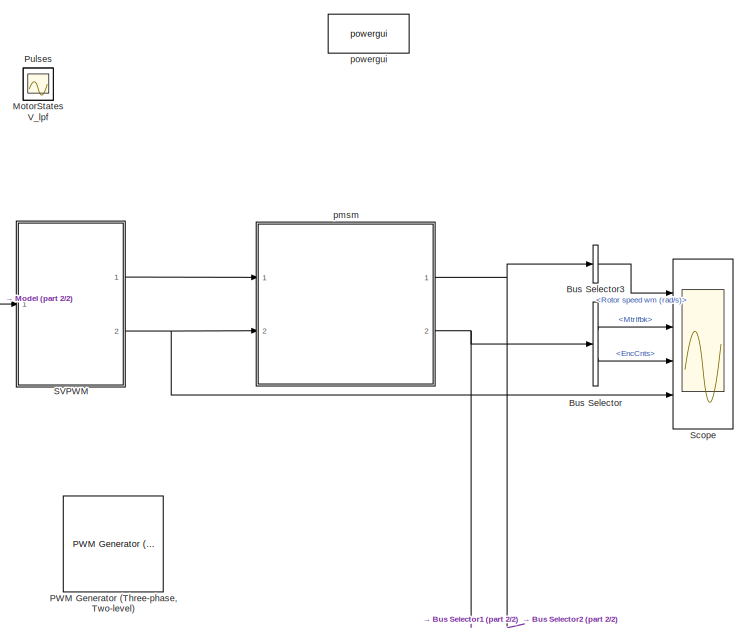
[diagram: root canvas - part 1/2, top right region]
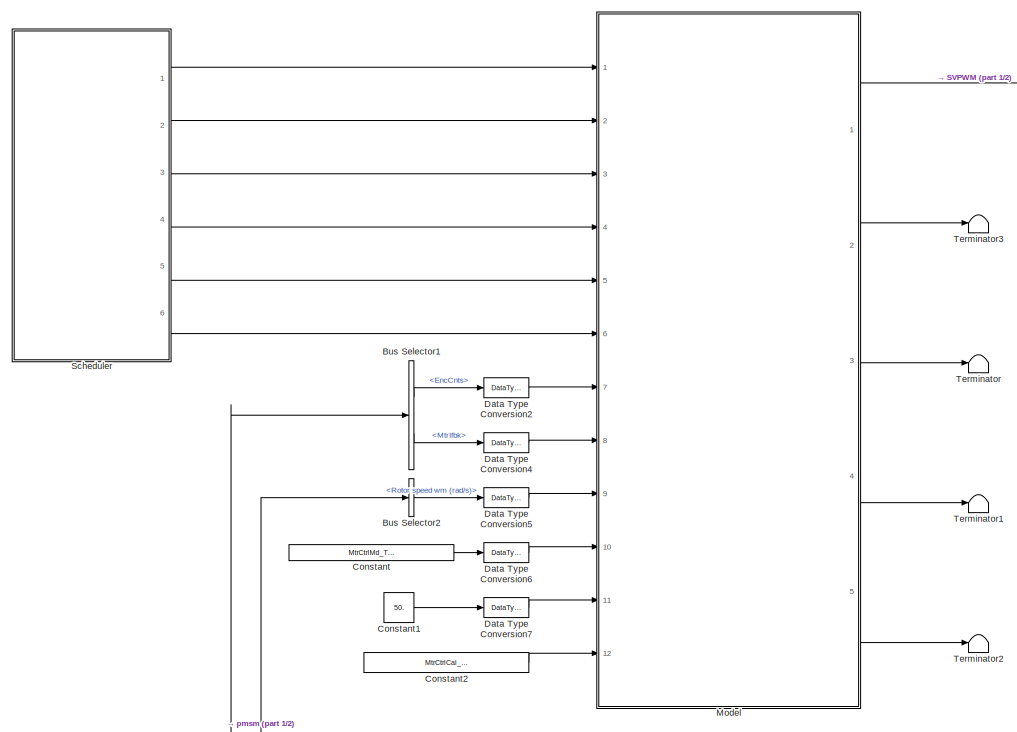
[diagram: root canvas - part 2/2, middle left region]
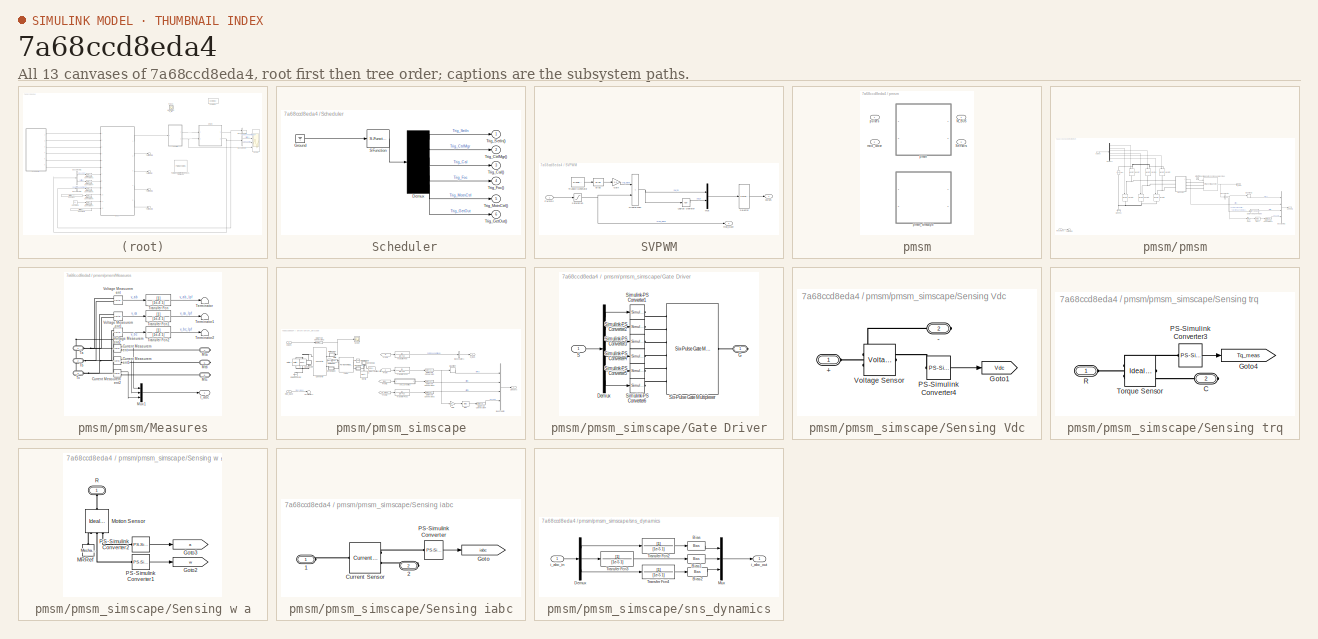
[diagram: thumbnail index - all 13 canvases of the model, root first then tree order]
MODEL slx_7a68ccd8eda4
KIND model
CONFIG AbsTol = auto
CONFIG EnableMultiTasking = off
CONFIG FixedStep = FastTsample / 10.
CONFIG MaxStep = auto
CONFIG MinStep = auto
CONFIG RelTol = 1e-3
CONFIG SampleTimeConstraint = Unconstrained
CONFIG Solver = ode15s
CONFIG SolverName = ode15s
CONFIG StartTime = 0.0
CONFIG StopTime = 0.2
BLOCK [SubSystem]  Scheduler
  ErrorFcn = Stateflow.Translate.translate
  PermitHierarchicalResolution = ExplicitOnly
  Ports = [0, 6]
  RequestExecContextInheritance = off
  SFBlockType = Chart
  SystemSampleTime = 1/30e3
  TreatAsAtomicUnit = on
BLOCK [Demux]  Scheduler/ Demux 
  Outputs = 6
  Ports = [1, 6]
BLOCK [Ground]  Scheduler/ Ground 
BLOCK [S-Function]  Scheduler/ SFunction 
  EnableBusSupport = on
  FunctionName = sf_sfun
  PortCounts = [1 1]
  Ports = [1, 1]
  SFcnIsStateOwnerBlock = off
  SFunctionDeploymentMode = off
  Tag = Stateflow S-Function pmsm_sim 3
BLOCK [Outport]  Scheduler/Trig_Cal()
  IconDisplay = Port number
  Port = 3
BLOCK [Outport]  Scheduler/Trig_CtrlMgr()
  IconDisplay = Port number
  Port = 2
BLOCK [Outport]  Scheduler/Trig_Foc()
  IconDisplay = Port number
  Port = 4
BLOCK [Outport]  Scheduler/Trig_GetOut()
  IconDisplay = Port number
  Port = 6
BLOCK [Outport]  Scheduler/Trig_MotnCtrl()
  IconDisplay = Port number
  Port = 5
BLOCK [Outport]  Scheduler/Trig_SetIn()
  IconDisplay = Port number
BLOCK [BusSelector] Bus Selector
  OutputAsBus = off
  OutputSignals = MtrIfbk,EncCnts
  Ports = [1, 2]
BLOCK [BusSelector] Bus Selector1
  OutputAsBus = off
  OutputSignals = EncCnts,MtrIfbk
  Ports = [1, 2]
BLOCK [BusSelector] Bus Selector2
  OutputAsBus = off
  OutputSignals = Rotor speed wm (rad/s)
  Ports = [1, 1]
BLOCK [BusSelector] Bus Selector3
  OutputAsBus = off
  OutputSignals = Rotor speed wm (rad/s)
  Ports = [1, 1]
BLOCK [Constant] Constant
  Value = MtrCtrlMd_T.CTRL_MD_CAL
BLOCK [Constant] Constant1
  Value = 50.
BLOCK [Constant] Constant2
  Value = MtrCtrlCal_T.CAL_IND_ID
BLOCK [DataTypeConversion] Data Type Conversion2
  OutDataTypeStr = int32
  RndMeth = Floor
  SaturateOnIntegerOverflow = off
BLOCK [DataTypeConversion] Data Type Conversion4
  OutDataTypeStr = single
  RndMeth = Floor
  SaturateOnIntegerOverflow = off
BLOCK [DataTypeConversion] Data Type Conversion5
  OutDataTypeStr = single
  RndMeth = Floor
  SaturateOnIntegerOverflow = off
BLOCK [DataTypeConversion] Data Type Conversion6
  RndMeth = Floor
  SaturateOnIntegerOverflow = off
BLOCK [DataTypeConversion] Data Type Conversion7
  OutDataTypeStr = single
  RndMeth = Floor
  SaturateOnIntegerOverflow = off
BLOCK [ModelReference] Model
  ModelNameDialog = pmsm_ctrl
  ModelReferenceVersion = 1.609
  Ports = [12, 5]
  ShowModelPeriodicEventPorts = on
BLOCK [Scope] MotorStates
  Floating = off
  IOType = viewer
  NumInputPorts = 1
  Ports = []
  ScopeSpecificationString = Simulink.scopes.TimeScopeBlockCfg('CurrentConfiguration', extmgr.ConfigurationSet(extmgr.Configuration('Core','General UI',true),extmgr.Configuration('Core','Source UI',true),extmgr.Configuration('Sources','WiredSimulink',true,'DataLoggingVariableName','ScopeData1'),extmgr.Configuration('Visuals','Time Domain',true,'SerializedDisplays',{struct('MinYLimReal','-0.0000000000000000000002','MaxYLimReal...<+4974ch>
BLOCK [Reference] PWM Generator (Three-phase, Two-level)  REF=pePwmGeneratorTwoLevel/PWM Generator
(Three-phase, Two-level)
  Commented = on
  Ports = [2, 2]
  SourceBlock = pePwmGeneratorTwoLevel/PWM Generator\n(Three-phase, Two-level)
  SourceType = PWM Generator (three-phase, two-level)
BLOCK [Scope] Pulses
  Floating = off
  IOType = viewer
  NumInputPorts = 1
  Ports = []
  ScopeSpecificationString = Simulink.scopes.TimeScopeBlockCfg('CurrentConfiguration', extmgr.ConfigurationSet(extmgr.Configuration('Core','General UI',true),extmgr.Configuration('Core','Source UI',true),extmgr.Configuration('Sources','WiredSimulink',true,'DataLoggingVariableName','ScopeData1'),extmgr.Configuration('Visuals','Time Domain',true,'SerializedDisplays',{struct('MinYLimReal','-0.125','MaxYLimReal','1.125','YLabelRe...<+3571ch>
BLOCK [SubSystem] SVPWM
  Ports = [1, 2]
  RequestExecContextInheritance = off
BLOCK [Bias] SVPWM/Bias
  Bias = 1
  SaturateOnIntegerOverflow = off
BLOCK [Gain] SVPWM/Gain
  Gain = 0.5
  OutDataTypeStr = Inherit: Inherit via internal rule
  ParamDataTypeStr = Inherit: Inherit via internal rule
  SaturateOnIntegerOverflow = off
BLOCK [RelationalOperator] SVPWM/GreaterThan
  InputSameDT = off
  Operator = <
  OutDataTypeStr = boolean
  Ports = [2, 1]
  RndMeth = Simplest
BLOCK [Logic] SVPWM/Logical Operator
  AllPortsSameDT = off
  Operator = NOT
  OutDataTypeStr = boolean
  Ports = [1, 1]
BLOCK [Mux] SVPWM/Mux
  DisplayOption = bar
  Inputs = 2
  Ports = [2, 1]
BLOCK [Inport] SVPWM/PwmDc
  IconDisplay = Port number
BLOCK [Saturate] SVPWM/Saturation
  InputPortMap = u0
  LowerLimit = 0
  Ports = [1, 1]
  UpperLimit = 1
BLOCK [Selector] SVPWM/Selector
  IndexOptions = Index vector (dialog)
  Indices = [1 4 2 5 3 6]
  InputPortWidth = 6
  OutputSizes = 1
  Ports = [1, 1]
BLOCK [Reference] SVPWM/Triangle Generator  REF=powerlib_meascontrol/Pulse & Signal
Generators/Triangle
Generator
  Ports = [0, 1]
  SourceBlock = powerlib_meascontrol/Pulse & Signal\nGenerators/Triangle\nGenerator
  SourceProductBaseCode = PS
  SourceProductName = Simscape Electrical
  SourceType = Triangle Generator
BLOCK [Outport] SVPWM/mod_wave
  IconDisplay = Port number
  Port = 2
  VectorParamsAs1DForOutWhenUnconnected = on
BLOCK [Outport] SVPWM/pulses
  IconDisplay = Port number
  VectorParamsAs1DForOutWhenUnconnected = on
BLOCK [Scope] Scope
  Floating = off
  NumInputPorts = 4
  Ports = [4]
  ScopeSpecificationString = Simulink.scopes.TimeScopeBlockCfg('CurrentConfiguration', extmgr.ConfigurationSet(extmgr.Configuration('Core','General UI',true),extmgr.Configuration('Core','Source UI',true),extmgr.Configuration('Sources','WiredSimulink',true,'DataLoggingVariableName','ScopeData1'),extmgr.Configuration('Visuals','Time Domain',true,'SerializedDisplays',{struct('MinYLimReal','-0.0000000000000000000002','MaxYLimReal...<+3733ch>
BLOCK [Terminator] Terminator
BLOCK [Terminator] Terminator1
BLOCK [Terminator] Terminator2
BLOCK [Terminator] Terminator3
BLOCK [Scope] V_lpf
  Floating = off
  IOType = viewer
  NumInputPorts = 1
  Ports = []
  ScopeSpecificationString = Simulink.scopes.TimeScopeBlockCfg('CurrentConfiguration', extmgr.ConfigurationSet(extmgr.Configuration('Core','General UI',true),extmgr.Configuration('Core','Source UI',true),extmgr.Configuration('Sources','WiredSimulink',true,'DataLoggingVariableName','ScopeData2'),extmgr.Configuration('Visuals','Time Domain',true,'SerializedDisplays',{struct('MinYLimReal','-57.77798','MaxYLimReal','57.80648','YL...<+1463ch>
BLOCK [SubSystem] pmsm
  OverrideUsingVariant = Variant1
  Ports = [2, 2]
  RequestExecContextInheritance = off
  Variant = on
  VariantControl = Variant1
BLOCK [Outport] pmsm/ M_BUS
  IconDisplay = Port number
BLOCK [Outport] pmsm/ Sensors
  IconDisplay = Port number
  Port = 2
BLOCK [Inport] pmsm/mod_wave 
  IconDisplay = Port number
  Port = 2
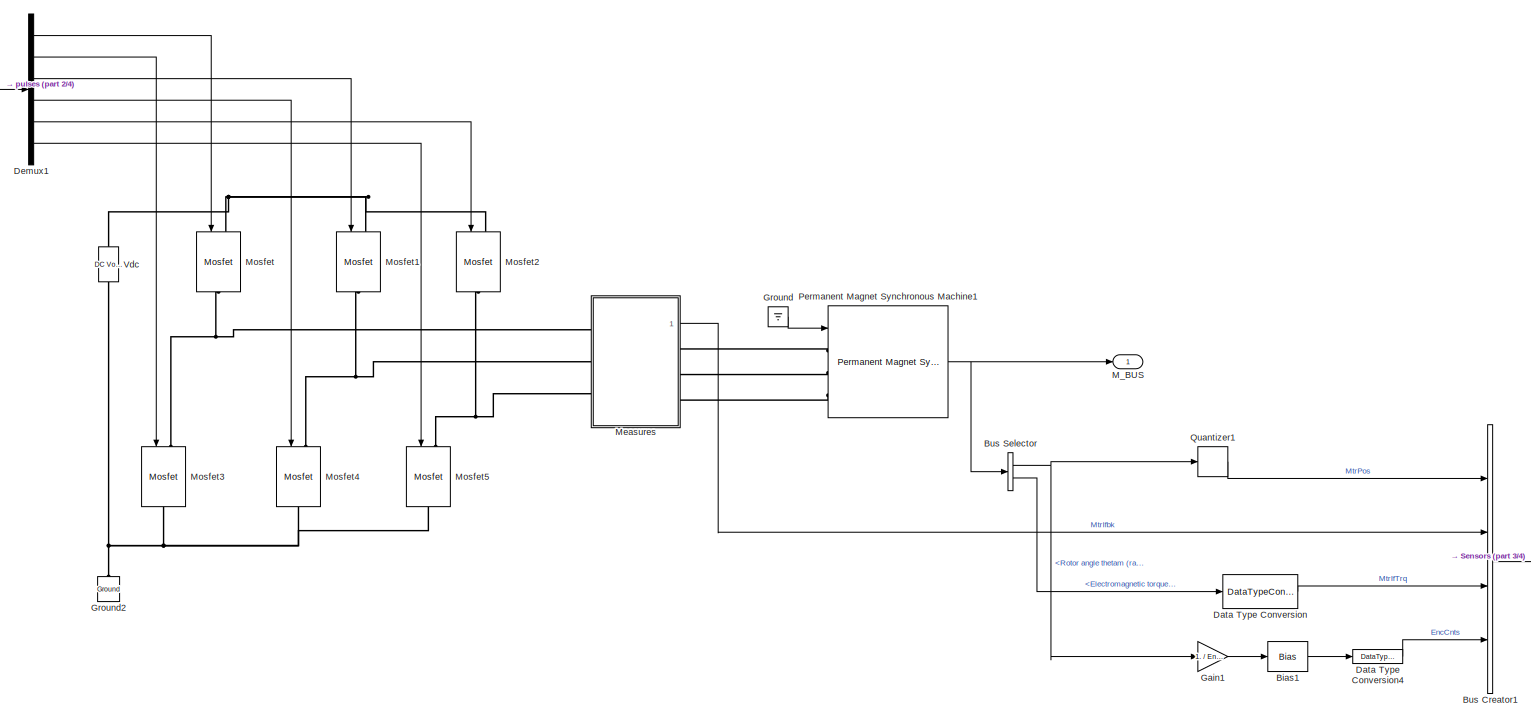
[diagram: pmsm/pmsm - part 1/4, most of the canvas]
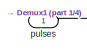
[diagram: pmsm/pmsm - part 2/4, top left region]
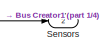
[diagram: pmsm/pmsm - part 3/4, bottom right region]
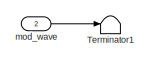
[diagram: pmsm/pmsm - part 4/4, bottom left region]
BLOCK [SubSystem] pmsm/pmsm
  Ports = [2, 2]
  RequestExecContextInheritance = off
  VariantControl = Variant2
BLOCK [Bias] pmsm/pmsm/Bias1
  Bias = 987
  SaturateOnIntegerOverflow = off
BLOCK [BusCreator] pmsm/pmsm/Bus Creator1
  DisplayOption = bar
  InheritFromInputs = on
  Inputs = 4
  Ports = [4, 1]
BLOCK [BusSelector] pmsm/pmsm/Bus Selector
  OutputAsBus = off
  OutputSignals = Rotor angle thetam (rad),Electromagnetic torque Te (N*m)
  Ports = [1, 2]
BLOCK [DataTypeConversion] pmsm/pmsm/Data Type Conversion
  RndMeth = Floor
  SaturateOnIntegerOverflow = off
BLOCK [DataTypeConversion] pmsm/pmsm/Data Type Conversion4
  OutDataTypeStr = int32
  RndMeth = Floor
  SaturateOnIntegerOverflow = off
BLOCK [Demux] pmsm/pmsm/Demux1
  DisplayOption = bar
  Outputs = 6
  Ports = [1, 6]
BLOCK [Gain] pmsm/pmsm/Gain1
  AttributesFormatString = %<Gain>
  Gain = 1. / EncCntsToRads
  OutDataTypeStr = Inherit: Inherit via back propagation
  ParamDataTypeStr = Inherit: Inherit via internal rule
  SaturateOnIntegerOverflow = off
BLOCK [Ground] pmsm/pmsm/Ground
BLOCK [Reference] pmsm/pmsm/Ground2  REF=powerlib/Elements/Ground
  Ports = [0, 0, 0, 0, 0, 1]
  SourceBlock = powerlib/Elements/Ground
  SourceProductBaseCode = PS
  SourceProductName = Simscape Electrical
  SourceType = Ground
BLOCK [Outport] pmsm/pmsm/M_BUS
  IconDisplay = Port number
BLOCK [SubSystem] pmsm/pmsm/Measures
  Ports = [0, 1, 0, 0, 0, 3, 3]
  RequestExecContextInheritance = off
BLOCK [Reference] pmsm/pmsm/Measures/Current Measurement  REF=powerlib/Measurements/Current Measurement
  AttributesFormatString = \n
  Ports = [0, 1, 0, 0, 0, 1, 1]
  SourceBlock = powerlib/Measurements/Current Measurement
  SourceProductBaseCode = PS
  SourceProductName = Simscape Electrical
  SourceType = Current Measurement
  Tag = PoWeRsYsTeMmEaSuReMeNt
BLOCK [Reference] pmsm/pmsm/Measures/Current Measurement1  REF=powerlib/Measurements/Current Measurement
  AttributesFormatString = \n
  Ports = [0, 1, 0, 0, 0, 1, 1]
  SourceBlock = powerlib/Measurements/Current Measurement
  SourceProductBaseCode = PS
  SourceProductName = Simscape Electrical
  SourceType = Current Measurement
  Tag = PoWeRsYsTeMmEaSuReMeNt
BLOCK [Reference] pmsm/pmsm/Measures/Current Measurement2  REF=powerlib/Measurements/Current Measurement
  AttributesFormatString = \n
  Ports = [0, 1, 0, 0, 0, 1, 1]
  SourceBlock = powerlib/Measurements/Current Measurement
  SourceProductBaseCode = PS
  SourceProductName = Simscape Electrical
  SourceType = Current Measurement
  Tag = PoWeRsYsTeMmEaSuReMeNt
BLOCK [Outport] pmsm/pmsm/Measures/I_abc
  IconDisplay = Port number
BLOCK [PMIOPort] pmsm/pmsm/Measures/Mta
  Port = 4
  Side = Right
BLOCK [PMIOPort] pmsm/pmsm/Measures/Mtb
  Port = 5
  Side = Right
BLOCK [PMIOPort] pmsm/pmsm/Measures/Mtc
  Port = 6
  Side = Right
BLOCK [Mux] pmsm/pmsm/Measures/Mux1
  DisplayOption = bar
  Inputs = 3
  Ports = [3, 1]
BLOCK [PMIOPort] pmsm/pmsm/Measures/Ta
  Side = Left
BLOCK [PMIOPort] pmsm/pmsm/Measures/Tb
  Port = 2
  Side = Left
BLOCK [PMIOPort] pmsm/pmsm/Measures/Tc
  Port = 3
  Side = Left
BLOCK [Terminator] pmsm/pmsm/Measures/Terminator
BLOCK [Terminator] pmsm/pmsm/Measures/Terminator1
BLOCK [Terminator] pmsm/pmsm/Measures/Terminator2
BLOCK [TransferFcn] pmsm/pmsm/Measures/Transfer Fcn
  Denominator = [1e-4 1]
BLOCK [TransferFcn] pmsm/pmsm/Measures/Transfer Fcn1
  Denominator = [1e-4 1]
BLOCK [TransferFcn] pmsm/pmsm/Measures/Transfer Fcn2
  Denominator = [1e-4 1]
BLOCK [Reference] pmsm/pmsm/Measures/Voltage Measurement  REF=powerlib/Measurements/Voltage Measurement
  Ports = [0, 1, 0, 0, 0, 2]
  SourceBlock = powerlib/Measurements/Voltage Measurement
  SourceProductBaseCode = PS
  SourceProductName = Simscape Electrical
  SourceType = Voltage Measurement
  UserDataPersistent = on
BLOCK [Reference] pmsm/pmsm/Measures/Voltage Measurement1  REF=powerlib/Measurements/Voltage Measurement
  Ports = [0, 1, 0, 0, 0, 2]
  SourceBlock = powerlib/Measurements/Voltage Measurement
  SourceProductBaseCode = PS
  SourceProductName = Simscape Electrical
  SourceType = Voltage Measurement
  UserDataPersistent = on
BLOCK [Reference] pmsm/pmsm/Measures/Voltage Measurement2  REF=powerlib/Measurements/Voltage Measurement
  Ports = [0, 1, 0, 0, 0, 2]
  SourceBlock = powerlib/Measurements/Voltage Measurement
  SourceProductBaseCode = PS
  SourceProductName = Simscape Electrical
  SourceType = Voltage Measurement
  UserDataPersistent = on
BLOCK [Reference] pmsm/pmsm/Mosfet  REF=powerlib/Power
Electronics/Mosfet
  Ports = [1, 0, 0, 0, 0, 1, 1]
  SourceBlock = powerlib/Power\nElectronics/Mosfet
  SourceProductBaseCode = PS
  SourceProductName = Simscape Power Systems
  SourceType = Mosfet
BLOCK [Reference] pmsm/pmsm/Mosfet1  REF=powerlib/Power
Electronics/Mosfet
  Ports = [1, 0, 0, 0, 0, 1, 1]
  SourceBlock = powerlib/Power\nElectronics/Mosfet
  SourceProductBaseCode = PS
  SourceProductName = Simscape Power Systems
  SourceType = Mosfet
BLOCK [Reference] pmsm/pmsm/Mosfet2  REF=powerlib/Power
Electronics/Mosfet
  Ports = [1, 0, 0, 0, 0, 1, 1]
  SourceBlock = powerlib/Power\nElectronics/Mosfet
  SourceProductBaseCode = PS
  SourceProductName = Simscape Power Systems
  SourceType = Mosfet
BLOCK [Reference] pmsm/pmsm/Mosfet3  REF=powerlib/Power
Electronics/Mosfet
  Ports = [1, 0, 0, 0, 0, 1, 1]
  SourceBlock = powerlib/Power\nElectronics/Mosfet
  SourceProductBaseCode = PS
  SourceProductName = Simscape Power Systems
  SourceType = Mosfet
BLOCK [Reference] pmsm/pmsm/Mosfet4  REF=powerlib/Power
Electronics/Mosfet
  Ports = [1, 0, 0, 0, 0, 1, 1]
  SourceBlock = powerlib/Power\nElectronics/Mosfet
  SourceProductBaseCode = PS
  SourceProductName = Simscape Power Systems
  SourceType = Mosfet
BLOCK [Reference] pmsm/pmsm/Mosfet5  REF=powerlib/Power
Electronics/Mosfet
  Ports = [1, 0, 0, 0, 0, 1, 1]
  SourceBlock = powerlib/Power\nElectronics/Mosfet
  SourceProductBaseCode = PS
  SourceProductName = Simscape Power Systems
  SourceType = Mosfet
BLOCK [Reference] pmsm/pmsm/Permanent Magnet Synchronous Machine1  REF=powerlib/Machines/Permanent Magnet
Synchronous Machine
  Ports = [1, 1, 0, 0, 0, 3]
  SourceBlock = powerlib/Machines/Permanent Magnet\nSynchronous Machine
  SourceProductBaseCode = PS
  SourceProductName = Simscape Electrical
  SourceType = Permanent Magnet Synchronous Machine
BLOCK [Quantizer] pmsm/pmsm/Quantizer1
  QuantizationInterval = 2 * pi / MtrParams.EncCnts
BLOCK [Outport] pmsm/pmsm/Sensors
  IconDisplay = Port number
  Port = 2
BLOCK [Terminator] pmsm/pmsm/Terminator1
BLOCK [Reference] pmsm/pmsm/Vdc  REF=powerlib/Electrical
Sources/DC Voltage Source
  Ports = [0, 0, 0, 0, 0, 1, 1]
  SourceBlock = powerlib/Electrical\nSources/DC Voltage Source
  SourceProductBaseCode = PS
  SourceProductName = Simscape Electrical
  SourceType = DC Voltage Source
BLOCK [Inport] pmsm/pmsm/mod_wave
  IconDisplay = Port number
  Port = 2
BLOCK [Inport] pmsm/pmsm/pulses
  IconDisplay = Port number
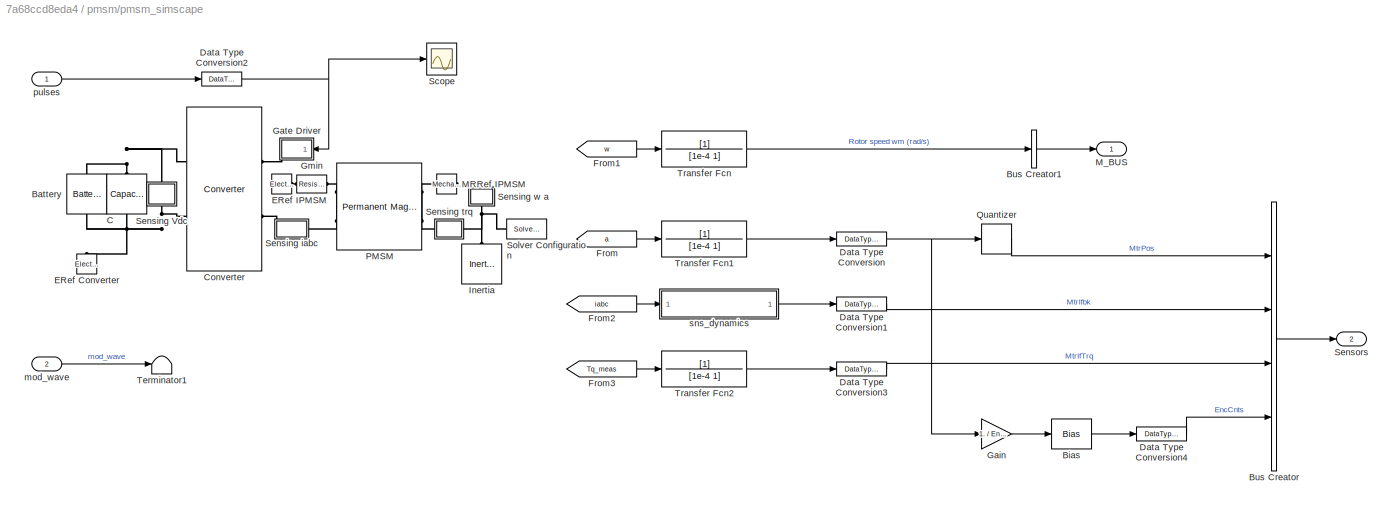
BLOCK [SubSystem] pmsm/pmsm_simscape
  Ports = [2, 2]
  RequestExecContextInheritance = off
  VariantControl = Variant1
BLOCK [Reference] pmsm/pmsm_simscape/Battery  REF=pe_lib/Sources/Battery
  Ports = [0, 0, 0, 0, 0, 1, 1]
  SourceBlock = pe_lib/Sources/Battery
  SourceProductBaseCode = PS
  SourceProductName = Simscape Power Systems
  SourceType = Battery
BLOCK [Bias] pmsm/pmsm_simscape/Bias
  Bias = 987
  SaturateOnIntegerOverflow = off
BLOCK [BusCreator] pmsm/pmsm_simscape/Bus Creator
  DisplayOption = bar
  InheritFromInputs = on
  Inputs = 4
  Ports = [4, 1]
BLOCK [BusCreator] pmsm/pmsm_simscape/Bus Creator1
  DisplayOption = bar
  InheritFromInputs = on
  Inputs = 1
  Ports = [1, 1]
BLOCK [Reference] pmsm/pmsm_simscape/C  REF=fl_lib/Electrical/Electrical Elements/Capacitor
  Ports = [0, 0, 0, 0, 0, 1, 1]
  SourceBlock = fl_lib/Electrical/Electrical Elements/Capacitor
  SourceProductName = Foundation Library
  SourceType = Capacitor
BLOCK [Reference] pmsm/pmsm_simscape/Converter  REF=pe_lib/Semiconductors/Converter
  Ports = [0, 0, 0, 0, 0, 2, 2]
  SourceBlock = pe_lib/Semiconductors/Converter
  SourceProductBaseCode = PS
  SourceProductName = Simscape Power Systems
  SourceType = Converter
BLOCK [DataTypeConversion] pmsm/pmsm_simscape/Data Type Conversion
  RndMeth = Floor
  SaturateOnIntegerOverflow = off
BLOCK [DataTypeConversion] pmsm/pmsm_simscape/Data Type Conversion1
  RndMeth = Floor
  SaturateOnIntegerOverflow = off
BLOCK [DataTypeConversion] pmsm/pmsm_simscape/Data Type Conversion2
  RndMeth = Floor
  SaturateOnIntegerOverflow = off
BLOCK [DataTypeConversion] pmsm/pmsm_simscape/Data Type Conversion3
  RndMeth = Floor
  SaturateOnIntegerOverflow = off
BLOCK [DataTypeConversion] pmsm/pmsm_simscape/Data Type Conversion4
  OutDataTypeStr = int32
  RndMeth = Floor
  SaturateOnIntegerOverflow = off
BLOCK [Reference] pmsm/pmsm_simscape/ERef Converter  REF=fl_lib/Electrical/Electrical Elements/Electrical Reference
  Ports = [0, 0, 0, 0, 0, 1]
  SourceBlock = fl_lib/Electrical/Electrical Elements/Electrical Reference
  SourceProductName = Foundation Library
  SourceType = Electrical Reference
BLOCK [Reference] pmsm/pmsm_simscape/ERef IPMSM  REF=fl_lib/Electrical/Electrical Elements/Electrical Reference
  Ports = [0, 0, 0, 0, 0, 1]
  SourceBlock = fl_lib/Electrical/Electrical Elements/Electrical Reference
  SourceProductName = Foundation Library
  SourceType = Electrical Reference
BLOCK [From] pmsm/pmsm_simscape/From
  GotoTag = a
  TagVisibility = global
BLOCK [From] pmsm/pmsm_simscape/From1
  GotoTag = w
  TagVisibility = global
BLOCK [From] pmsm/pmsm_simscape/From2
  GotoTag = iabc
  TagVisibility = global
BLOCK [From] pmsm/pmsm_simscape/From3
  GotoTag = Tq_meas
  TagVisibility = global
BLOCK [Gain] pmsm/pmsm_simscape/Gain
  AttributesFormatString = %<Gain>
  Gain = 1. / EncCntsToRads
  OutDataTypeStr = Inherit: Inherit via back propagation
  ParamDataTypeStr = Inherit: Inherit via internal rule
  SaturateOnIntegerOverflow = off
BLOCK [SubSystem] pmsm/pmsm_simscape/Gate Driver
  Ports = [1, 0, 0, 0, 0, 0, 1]
  RequestExecContextInheritance = off
BLOCK [Demux] pmsm/pmsm_simscape/Gate Driver/Demux
  DisplayOption = bar
  Outputs = 6
  Ports = [1, 6]
BLOCK [PMIOPort] pmsm/pmsm_simscape/Gate Driver/G
  Side = Right
BLOCK [Inport] pmsm/pmsm_simscape/Gate Driver/S
  IconDisplay = Port number
BLOCK [Reference] pmsm/pmsm_simscape/Gate Driver/Simulink-PS Converter1  REF=nesl_utility/Simulink-PS
Converter
  Ports = [1, 0, 0, 0, 0, 0, 1]
  SourceBlock = nesl_utility/Simulink-PS\nConverter
  SourceProductBaseCode = SS
  SourceProductName = Simscape
  SourceType = Simulink-PS\nConverter
BLOCK [Reference] pmsm/pmsm_simscape/Gate Driver/Simulink-PS Converter2  REF=nesl_utility/Simulink-PS
Converter
  Ports = [1, 0, 0, 0, 0, 0, 1]
  SourceBlock = nesl_utility/Simulink-PS\nConverter
  SourceProductBaseCode = SS
  SourceProductName = Simscape
  SourceType = Simulink-PS\nConverter
BLOCK [Reference] pmsm/pmsm_simscape/Gate Driver/Simulink-PS Converter3  REF=nesl_utility/Simulink-PS
Converter
  Ports = [1, 0, 0, 0, 0, 0, 1]
  SourceBlock = nesl_utility/Simulink-PS\nConverter
  SourceProductBaseCode = SS
  SourceProductName = Simscape
  SourceType = Simulink-PS\nConverter
BLOCK [Reference] pmsm/pmsm_simscape/Gate Driver/Simulink-PS Converter4  REF=nesl_utility/Simulink-PS
Converter
  Ports = [1, 0, 0, 0, 0, 0, 1]
  SourceBlock = nesl_utility/Simulink-PS\nConverter
  SourceProductBaseCode = SS
  SourceProductName = Simscape
  SourceType = Simulink-PS\nConverter
BLOCK [Reference] pmsm/pmsm_simscape/Gate Driver/Simulink-PS Converter5  REF=nesl_utility/Simulink-PS
Converter
  Ports = [1, 0, 0, 0, 0, 0, 1]
  SourceBlock = nesl_utility/Simulink-PS\nConverter
  SourceProductBaseCode = SS
  SourceProductName = Simscape
  SourceType = Simulink-PS\nConverter
BLOCK [Reference] pmsm/pmsm_simscape/Gate Driver/Simulink-PS Converter6  REF=nesl_utility/Simulink-PS
Converter
  Ports = [1, 0, 0, 0, 0, 0, 1]
  SourceBlock = nesl_utility/Simulink-PS\nConverter
  SourceProductBaseCode = SS
  SourceProductName = Simscape
  SourceType = Simulink-PS\nConverter
BLOCK [Reference] pmsm/pmsm_simscape/Gate Driver/Six-Pulse Gate Multiplexer  REF=pe_lib/Semiconductors/Six-Pulse Gate
Multiplexer
  Ports = [0, 0, 0, 0, 0, 6, 1]
  SourceBlock = pe_lib/Semiconductors/Six-Pulse Gate\nMultiplexer
  SourceProductBaseCode = PS
  SourceProductName = Simscape Power Systems
  SourceType = Six-Pulse Gate\nMultiplexer
BLOCK [Reference] pmsm/pmsm_simscape/Gmin  REF=fl_lib/Electrical/Electrical Elements/Resistor
  Ports = [0, 0, 0, 0, 0, 1, 1]
  SourceBlock = fl_lib/Electrical/Electrical Elements/Resistor
  SourceProductName = Foundation Library
  SourceType = Resistor
BLOCK [Reference] pmsm/pmsm_simscape/Inertia  REF=fl_lib/Mechanical/Rotational Elements/Inertia
  Commented = on
  Ports = [0, 0, 0, 0, 0, 1]
  SourceBlock = fl_lib/Mechanical/Rotational Elements/Inertia
  SourceProductName = Foundation Library
  SourceType = Inertia
BLOCK [Reference] pmsm/pmsm_simscape/MRRef IPMSM  REF=fl_lib/Mechanical/Rotational Elements/Mechanical
Rotational Reference
  Ports = [0, 0, 0, 0, 0, 1]
  SourceBlock = fl_lib/Mechanical/Rotational Elements/Mechanical\nRotational Reference
  SourceProductName = Foundation Library
  SourceType = Mechanical\nRotational Reference
BLOCK [Outport] pmsm/pmsm_simscape/M_BUS
  IconDisplay = Port number
BLOCK [Reference] pmsm/pmsm_simscape/PMSM  REF=pe_lib/Machines/Permanent Magnet
Rotor/Permanent Magnet
Synchronous Motor
  Ports = [0, 0, 0, 0, 0, 2, 2]
  SourceBlock = pe_lib/Machines/Permanent Magnet\nRotor/Permanent Magnet\nSynchronous Motor
  SourceProductBaseCode = PS
  SourceProductName = Simscape Power Systems
  SourceType = Permanent Magnet\nSynchronous Motor
BLOCK [Quantizer] pmsm/pmsm_simscape/Quantizer
  QuantizationInterval = 2 * pi / MtrParams.EncCnts
BLOCK [Scope] pmsm/pmsm_simscape/Scope
  Floating = off
  NumInputPorts = 1
  Ports = [1]
  ScopeSpecificationString = Simulink.scopes.TimeScopeBlockCfg('CurrentConfiguration', extmgr.ConfigurationSet(extmgr.Configuration('Core','General UI',true),extmgr.Configuration('Core','Source UI',true),extmgr.Configuration('Sources','WiredSimulink',true,'DataLoggingVariableName','ScopeData1'),extmgr.Configuration('Visuals','Time Domain',true,'SerializedDisplays',{struct('MinYLimReal','-0.125','MaxYLimReal','1.125','YLabelRe...<+1571ch>
BLOCK [SubSystem] pmsm/pmsm_simscape/Sensing Vdc
  Ports = [0, 0, 0, 0, 0, 1, 1]
  RequestExecContextInheritance = off
BLOCK [PMIOPort] pmsm/pmsm_simscape/Sensing Vdc/+
  Side = Left
BLOCK [PMIOPort] pmsm/pmsm_simscape/Sensing Vdc/-
  Port = 2
  Side = Right
BLOCK [Goto] pmsm/pmsm_simscape/Sensing Vdc/Goto1
  GotoTag = Vdc
  TagVisibility = global
BLOCK [Reference] pmsm/pmsm_simscape/Sensing Vdc/PS-Simulink Converter4  REF=nesl_utility/PS-Simulink
Converter
  Ports = [0, 1, 0, 0, 0, 1]
  SourceBlock = nesl_utility/PS-Simulink\nConverter
  SourceProductBaseCode = SS
  SourceProductName = Simscape
  SourceType = PS-Simulink\nConverter
BLOCK [Reference] pmsm/pmsm_simscape/Sensing Vdc/Voltage Sensor  REF=fl_lib/Electrical/Electrical Sensors/Voltage Sensor
  Ports = [0, 0, 0, 0, 0, 1, 2]
  SourceBlock = fl_lib/Electrical/Electrical Sensors/Voltage Sensor
  SourceProductName = Foundation Library
  SourceType = Voltage Sensor
BLOCK [SubSystem] pmsm/pmsm_simscape/Sensing iabc
  Ports = [0, 0, 0, 0, 0, 1, 1]
  RequestExecContextInheritance = off
BLOCK [PMIOPort] pmsm/pmsm_simscape/Sensing iabc/1
  Side = Left
BLOCK [PMIOPort] pmsm/pmsm_simscape/Sensing iabc/2
  Port = 2
  Side = Right
BLOCK [Reference] pmsm/pmsm_simscape/Sensing iabc/Current Sensor  REF=pe_lib/Sensors/Current Sensor
  Ports = [0, 0, 0, 0, 0, 1, 2]
  SourceBlock = pe_lib/Sensors/Current Sensor
  SourceProductBaseCode = PS
  SourceProductName = Simscape Power Systems
  SourceType = Current Sensor
BLOCK [Goto] pmsm/pmsm_simscape/Sensing iabc/Goto
  GotoTag = iabc
  TagVisibility = global
BLOCK [Reference] pmsm/pmsm_simscape/Sensing iabc/PS-Simulink Converter  REF=nesl_utility/PS-Simulink
Converter
  Ports = [0, 1, 0, 0, 0, 1]
  SourceBlock = nesl_utility/PS-Simulink\nConverter
  SourceProductBaseCode = SS
  SourceProductName = Simscape
  SourceType = PS-Simulink\nConverter
BLOCK [SubSystem] pmsm/pmsm_simscape/Sensing trq
  Ports = [0, 0, 0, 0, 0, 1, 1]
  RequestExecContextInheritance = off
BLOCK [PMIOPort] pmsm/pmsm_simscape/Sensing trq/C
  Port = 2
  Side = Right
BLOCK [Goto] pmsm/pmsm_simscape/Sensing trq/Goto4
  GotoTag = Tq_meas
  TagVisibility = global
BLOCK [Reference] pmsm/pmsm_simscape/Sensing trq/PS-Simulink Converter3  REF=nesl_utility/PS-Simulink
Converter
  Ports = [0, 1, 0, 0, 0, 1]
  SourceBlock = nesl_utility/PS-Simulink\nConverter
  SourceProductBaseCode = SS
  SourceProductName = Simscape
  SourceType = PS-Simulink\nConverter
BLOCK [PMIOPort] pmsm/pmsm_simscape/Sensing trq/R
  Side = Left
BLOCK [Reference] pmsm/pmsm_simscape/Sensing trq/Torque Sensor  REF=fl_lib/Mechanical/Mechanical Sensors/Ideal Torque Sensor
  Ports = [0, 0, 0, 0, 0, 1, 2]
  SourceBlock = fl_lib/Mechanical/Mechanical Sensors/Ideal Torque Sensor
  SourceProductName = Foundation Library
  SourceType = Ideal Torque Sensor
BLOCK [SubSystem] pmsm/pmsm_simscape/Sensing w a
  Ports = [0, 0, 0, 0, 0, 1]
  RequestExecContextInheritance = off
BLOCK [Goto] pmsm/pmsm_simscape/Sensing w a/Goto2
  GotoTag = w
  TagVisibility = global
BLOCK [Goto] pmsm/pmsm_simscape/Sensing w a/Goto3
  GotoTag = a
  TagVisibility = global
BLOCK [Reference] pmsm/pmsm_simscape/Sensing w a/MRRef  REF=fl_lib/Mechanical/Rotational Elements/Mechanical
Rotational Reference
  Ports = [0, 0, 0, 0, 0, 1]
  SourceBlock = fl_lib/Mechanical/Rotational Elements/Mechanical\nRotational Reference
  SourceProductName = Foundation Library
  SourceType = Mechanical\nRotational Reference
BLOCK [Reference] pmsm/pmsm_simscape/Sensing w a/Motion Sensor  REF=fl_lib/Mechanical/Mechanical Sensors/Ideal Rotational
Motion Sensor
  Ports = [0, 0, 0, 0, 0, 1, 3]
  SourceBlock = fl_lib/Mechanical/Mechanical Sensors/Ideal Rotational\nMotion Sensor
  SourceProductName = Foundation Library
  SourceType = Ideal Rotational\nMotion Sensor
BLOCK [Reference] pmsm/pmsm_simscape/Sensing w a/PS-Simulink Converter1  REF=nesl_utility/PS-Simulink
Converter
  Ports = [0, 1, 0, 0, 0, 1]
  SourceBlock = nesl_utility/PS-Simulink\nConverter
  SourceProductBaseCode = SS
  SourceProductName = Simscape
  SourceType = PS-Simulink\nConverter
BLOCK [Reference] pmsm/pmsm_simscape/Sensing w a/PS-Simulink Converter2  REF=nesl_utility/PS-Simulink
Converter
  Ports = [0, 1, 0, 0, 0, 1]
  SourceBlock = nesl_utility/PS-Simulink\nConverter
  SourceProductBaseCode = SS
  SourceProductName = Simscape
  SourceType = PS-Simulink\nConverter
BLOCK [PMIOPort] pmsm/pmsm_simscape/Sensing w a/R
  Side = Left
BLOCK [Outport] pmsm/pmsm_simscape/Sensors
  IconDisplay = Port number
  Port = 2
BLOCK [Reference] pmsm/pmsm_simscape/Solver Configuration  REF=nesl_utility/Solver
Configuration
  Ports = [0, 0, 0, 0, 0, 0, 1]
  SourceBlock = nesl_utility/Solver\nConfiguration
  SourceProductBaseCode = SS
  SourceProductName = Simscape
  SourceType = Solver\nConfiguration
BLOCK [Terminator] pmsm/pmsm_simscape/Terminator1
BLOCK [TransferFcn] pmsm/pmsm_simscape/Transfer Fcn
  Denominator = [1e-4 1]
BLOCK [TransferFcn] pmsm/pmsm_simscape/Transfer Fcn1
  Denominator = [1e-4 1]
BLOCK [TransferFcn] pmsm/pmsm_simscape/Transfer Fcn2
  Denominator = [1e-4 1]
BLOCK [Inport] pmsm/pmsm_simscape/mod_wave
  IconDisplay = Port number
  Port = 2
BLOCK [Inport] pmsm/pmsm_simscape/pulses
  IconDisplay = Port number
BLOCK [SubSystem] pmsm/pmsm_simscape/sns_dynamics
  Ports = [1, 1]
  RequestExecContextInheritance = off
BLOCK [Bias] pmsm/pmsm_simscape/sns_dynamics/Bias
  Bias = 98.50
  SaturateOnIntegerOverflow = off
BLOCK [Bias] pmsm/pmsm_simscape/sns_dynamics/Bias1
  Bias = -10.5
  SaturateOnIntegerOverflow = off
BLOCK [Bias] pmsm/pmsm_simscape/sns_dynamics/Bias2
  Bias = 20.9
  SaturateOnIntegerOverflow = off
BLOCK [Demux] pmsm/pmsm_simscape/sns_dynamics/Demux
  DisplayOption = bar
  Outputs = 3
  Ports = [1, 3]
BLOCK [Mux] pmsm/pmsm_simscape/sns_dynamics/Mux
  DisplayOption = bar
  Inputs = 3
  Ports = [3, 1]
BLOCK [TransferFcn] pmsm/pmsm_simscape/sns_dynamics/Transfer Fcn2
  Denominator = [1e-5 1]
BLOCK [TransferFcn] pmsm/pmsm_simscape/sns_dynamics/Transfer Fcn3
  Denominator = [1e-5 1]
BLOCK [TransferFcn] pmsm/pmsm_simscape/sns_dynamics/Transfer Fcn4
  Denominator = [1e-5 1]
BLOCK [Inport] pmsm/pmsm_simscape/sns_dynamics/i_abc_in
  IconDisplay = Port number
BLOCK [Outport] pmsm/pmsm_simscape/sns_dynamics/i_abc_out
  IconDisplay = Port number
BLOCK [Inport] pmsm/pulses 
  IconDisplay = Port number
BLOCK [Reference] powergui  REF=powerlib/powergui
  Ports = []
  Priority = 1
  SourceBlock = powerlib/powergui
  SourceProductBaseCode = PS
  SourceProductName = Simscape Power Systems
  SourceType = PSB option menu block
LINE  Scheduler:1 -> Model:1
LINE  Scheduler:2 -> Model:2
LINE  Scheduler:3 -> Model:3
LINE  Scheduler:4 -> Model:4
LINE  Scheduler:5 -> Model:5
LINE  Scheduler:6 -> Model:6
LINE Bus Selector1:1 -> Data Type Conversion2:1
LINE Bus Selector1:2 -> Data Type Conversion4:1
LINE Bus Selector2:1 -> Data Type Conversion5:1
LINE Bus Selector3:1 -> Scope:1
LINE Bus Selector:1 -> Scope:2
LINE Bus Selector:2 -> Scope:3
LINE Constant1:1 -> Data Type Conversion7:1
LINE Constant2:1 -> Model:12
LINE Constant:1 -> Data Type Conversion6:1
LINE Data Type Conversion2:1 -> Model:7
LINE Data Type Conversion4:1 -> Model:8
LINE Data Type Conversion5:1 -> Model:9
LINE Data Type Conversion6:1 -> Model:10
LINE Data Type Conversion7:1 -> Model:11
LINE Model:1 -> SVPWM:1
LINE Model:2 -> Terminator3:1
LINE Model:3 -> Terminator:1
LINE Model:4 -> Terminator1:1
LINE Model:5 -> Terminator2:1
LINE SVPWM/Bias:1 -> SVPWM/Gain:1
LINE SVPWM/Gain:1 -> SVPWM/GreaterThan:1
NET SVPWM/GreaterThan:1 -> SVPWM/Logical Operator:1, SVPWM/Mux:1
LINE SVPWM/Logical Operator:1 -> SVPWM/Mux:2
LINE SVPWM/Mux:1 -> SVPWM/Selector:1
LINE SVPWM/PwmDc:1 -> SVPWM/Saturation:1
NET SVPWM/Saturation:1 -> SVPWM/GreaterThan:2, SVPWM/mod_wave:1
LINE SVPWM/Selector:1 -> SVPWM/pulses:1
LINE SVPWM/Triangle Generator:1 -> SVPWM/Bias:1
LINE SVPWM:1 -> pmsm:1
NET SVPWM:2 -> Scope:4, pmsm:2
LINE pmsm/pmsm/Bias1:1 -> pmsm/pmsm/Data Type Conversion4:1
LINE pmsm/pmsm/Bus Creator1:1 -> pmsm/pmsm/Sensors:1
NET pmsm/pmsm/Bus Selector:1 -> pmsm/pmsm/Gain1:1, pmsm/pmsm/Quantizer1:1
LINE pmsm/pmsm/Bus Selector:2 -> pmsm/pmsm/Data Type Conversion:1
LINE pmsm/pmsm/Data Type Conversion4:1 -> pmsm/pmsm/Bus Creator1:4
LINE pmsm/pmsm/Data Type Conversion:1 -> pmsm/pmsm/Bus Creator1:3
LINE pmsm/pmsm/Demux1:1 -> pmsm/pmsm/Mosfet:1
LINE pmsm/pmsm/Demux1:2 -> pmsm/pmsm/Mosfet3:1
LINE pmsm/pmsm/Demux1:3 -> pmsm/pmsm/Mosfet1:1
LINE pmsm/pmsm/Demux1:4 -> pmsm/pmsm/Mosfet4:1
LINE pmsm/pmsm/Demux1:5 -> pmsm/pmsm/Mosfet2:1
LINE pmsm/pmsm/Demux1:6 -> pmsm/pmsm/Mosfet5:1
LINE pmsm/pmsm/Gain1:1 -> pmsm/pmsm/Bias1:1
LINE pmsm/pmsm/Ground:1 -> pmsm/pmsm/Permanent Magnet Synchronous Machine1:1
LINE pmsm/pmsm/Measures/Current Measurement1:1 -> pmsm/pmsm/Measures/Mux1:2
LINE pmsm/pmsm/Measures/Current Measurement2:1 -> pmsm/pmsm/Measures/Mux1:3
LINE pmsm/pmsm/Measures/Current Measurement:1 -> pmsm/pmsm/Measures/Mux1:1
LINE pmsm/pmsm/Measures/Mux1:1 -> pmsm/pmsm/Measures/I_abc:1
LINE pmsm/pmsm/Measures/Transfer Fcn1:1 -> pmsm/pmsm/Measures/Terminator1:1
LINE pmsm/pmsm/Measures/Transfer Fcn2:1 -> pmsm/pmsm/Measures/Terminator2:1
LINE pmsm/pmsm/Measures/Transfer Fcn:1 -> pmsm/pmsm/Measures/Terminator:1
LINE pmsm/pmsm/Measures/Voltage Measurement1:1 -> pmsm/pmsm/Measures/Transfer Fcn1:1
LINE pmsm/pmsm/Measures/Voltage Measurement2:1 -> pmsm/pmsm/Measures/Transfer Fcn2:1
LINE pmsm/pmsm/Measures/Voltage Measurement:1 -> pmsm/pmsm/Measures/Transfer Fcn:1
LINE pmsm/pmsm/Measures:1 -> pmsm/pmsm/Bus Creator1:2
NET pmsm/pmsm/Permanent Magnet Synchronous Machine1:1 -> pmsm/pmsm/Bus Selector:1, pmsm/pmsm/M_BUS:1
LINE pmsm/pmsm/Quantizer1:1 -> pmsm/pmsm/Bus Creator1:1
LINE pmsm/pmsm/mod_wave:1 -> pmsm/pmsm/Terminator1:1
LINE pmsm/pmsm/pulses:1 -> pmsm/pmsm/Demux1:1
LINE pmsm/pmsm_simscape/Bias:1 -> pmsm/pmsm_simscape/Data Type Conversion4:1
LINE pmsm/pmsm_simscape/Bus Creator1:1 -> pmsm/pmsm_simscape/M_BUS:1
LINE pmsm/pmsm_simscape/Bus Creator:1 -> pmsm/pmsm_simscape/Sensors:1
LINE pmsm/pmsm_simscape/Data Type Conversion1:1 -> pmsm/pmsm_simscape/Bus Creator:2
NET pmsm/pmsm_simscape/Data Type Conversion2:1 -> pmsm/pmsm_simscape/Gate Driver:1, pmsm/pmsm_simscape/Scope:1
LINE pmsm/pmsm_simscape/Data Type Conversion3:1 -> pmsm/pmsm_simscape/Bus Creator:3
LINE pmsm/pmsm_simscape/Data Type Conversion4:1 -> pmsm/pmsm_simscape/Bus Creator:4
NET pmsm/pmsm_simscape/Data Type Conversion:1 -> pmsm/pmsm_simscape/Gain:1, pmsm/pmsm_simscape/Quantizer:1
LINE pmsm/pmsm_simscape/From1:1 -> pmsm/pmsm_simscape/Transfer Fcn:1
LINE pmsm/pmsm_simscape/From2:1 -> pmsm/pmsm_simscape/sns_dynamics:1
LINE pmsm/pmsm_simscape/From3:1 -> pmsm/pmsm_simscape/Transfer Fcn2:1
LINE pmsm/pmsm_simscape/From:1 -> pmsm/pmsm_simscape/Transfer Fcn1:1
LINE pmsm/pmsm_simscape/Gain:1 -> pmsm/pmsm_simscape/Bias:1
LINE pmsm/pmsm_simscape/Gate Driver/Demux:1 -> pmsm/pmsm_simscape/Gate Driver/Simulink-PS Converter1:1
LINE pmsm/pmsm_simscape/Gate Driver/Demux:2 -> pmsm/pmsm_simscape/Gate Driver/Simulink-PS Converter2:1
LINE pmsm/pmsm_simscape/Gate Driver/Demux:3 -> pmsm/pmsm_simscape/Gate Driver/Simulink-PS Converter3:1
LINE pmsm/pmsm_simscape/Gate Driver/Demux:4 -> pmsm/pmsm_simscape/Gate Driver/Simulink-PS Converter4:1
LINE pmsm/pmsm_simscape/Gate Driver/Demux:5 -> pmsm/pmsm_simscape/Gate Driver/Simulink-PS Converter5:1
LINE pmsm/pmsm_simscape/Gate Driver/Demux:6 -> pmsm/pmsm_simscape/Gate Driver/Simulink-PS Converter6:1
LINE pmsm/pmsm_simscape/Gate Driver/S:1 -> pmsm/pmsm_simscape/Gate Driver/Demux:1
LINE pmsm/pmsm_simscape/Quantizer:1 -> pmsm/pmsm_simscape/Bus Creator:1
LINE pmsm/pmsm_simscape/Sensing Vdc/PS-Simulink Converter4:1 -> pmsm/pmsm_simscape/Sensing Vdc/Goto1:1
LINE pmsm/pmsm_simscape/Sensing iabc/PS-Simulink Converter:1 -> pmsm/pmsm_simscape/Sensing iabc/Goto:1
LINE pmsm/pmsm_simscape/Sensing trq/PS-Simulink Converter3:1 -> pmsm/pmsm_simscape/Sensing trq/Goto4:1
LINE pmsm/pmsm_simscape/Sensing w a/PS-Simulink Converter1:1 -> pmsm/pmsm_simscape/Sensing w a/Goto2:1
LINE pmsm/pmsm_simscape/Sensing w a/PS-Simulink Converter2:1 -> pmsm/pmsm_simscape/Sensing w a/Goto3:1
LINE pmsm/pmsm_simscape/Transfer Fcn1:1 -> pmsm/pmsm_simscape/Data Type Conversion:1
LINE pmsm/pmsm_simscape/Transfer Fcn2:1 -> pmsm/pmsm_simscape/Data Type Conversion3:1
LINE pmsm/pmsm_simscape/Transfer Fcn:1 -> pmsm/pmsm_simscape/Bus Creator1:1
LINE pmsm/pmsm_simscape/mod_wave:1 -> pmsm/pmsm_simscape/Terminator1:1
LINE pmsm/pmsm_simscape/pulses:1 -> pmsm/pmsm_simscape/Data Type Conversion2:1
LINE pmsm/pmsm_simscape/sns_dynamics/Bias1:1 -> pmsm/pmsm_simscape/sns_dynamics/Mux:2
LINE pmsm/pmsm_simscape/sns_dynamics/Bias2:1 -> pmsm/pmsm_simscape/sns_dynamics/Mux:3
LINE pmsm/pmsm_simscape/sns_dynamics/Bias:1 -> pmsm/pmsm_simscape/sns_dynamics/Mux:1
LINE pmsm/pmsm_simscape/sns_dynamics/Demux:1 -> pmsm/pmsm_simscape/sns_dynamics/Transfer Fcn2:1
LINE pmsm/pmsm_simscape/sns_dynamics/Demux:2 -> pmsm/pmsm_simscape/sns_dynamics/Transfer Fcn3:1
LINE pmsm/pmsm_simscape/sns_dynamics/Demux:3 -> pmsm/pmsm_simscape/sns_dynamics/Transfer Fcn4:1
LINE pmsm/pmsm_simscape/sns_dynamics/Mux:1 -> pmsm/pmsm_simscape/sns_dynamics/i_abc_out:1
LINE pmsm/pmsm_simscape/sns_dynamics/Transfer Fcn2:1 -> pmsm/pmsm_simscape/sns_dynamics/Bias:1
LINE pmsm/pmsm_simscape/sns_dynamics/Transfer Fcn3:1 -> pmsm/pmsm_simscape/sns_dynamics/Bias1:1
LINE pmsm/pmsm_simscape/sns_dynamics/Transfer Fcn4:1 -> pmsm/pmsm_simscape/sns_dynamics/Bias2:1
LINE pmsm/pmsm_simscape/sns_dynamics/i_abc_in:1 -> pmsm/pmsm_simscape/sns_dynamics/Demux:1
LINE pmsm/pmsm_simscape/sns_dynamics:1 -> pmsm/pmsm_simscape/Data Type Conversion1:1
NET pmsm:1 -> Bus Selector2:1, Bus Selector3:1
NET pmsm:2 -> Bus Selector1:1, Bus Selector:1
PNET net1: pmsm/pmsm/Ground2:LConn1 -- pmsm/pmsm/Mosfet3:RConn1 -- pmsm/pmsm/Mosfet4:RConn1 -- pmsm/pmsm/Mosfet5:RConn1 -- pmsm/pmsm/Vdc:LConn1
PNET net2: pmsm/pmsm/Measures/Current Measurement1:LConn1 -- pmsm/pmsm/Measures/Tb:RConn1 -- pmsm/pmsm/Measures/Voltage Measurement2:LConn1 -- pmsm/pmsm/Measures/Voltage Measurement:LConn2
PLINE pmsm/pmsm/Measures/Current Measurement1:RConn1 -- pmsm/pmsm/Measures/Mtb:RConn1
PNET net3: pmsm/pmsm/Measures/Current Measurement2:LConn1 -- pmsm/pmsm/Measures/Tc:RConn1 -- pmsm/pmsm/Measures/Voltage Measurement1:LConn1 -- pmsm/pmsm/Measures/Voltage Measurement2:LConn2
PLINE pmsm/pmsm/Measures/Current Measurement2:RConn1 -- pmsm/pmsm/Measures/Mtc:RConn1
PNET net4: pmsm/pmsm/Measures/Current Measurement:LConn1 -- pmsm/pmsm/Measures/Ta:RConn1 -- pmsm/pmsm/Measures/Voltage Measurement1:LConn2 -- pmsm/pmsm/Measures/Voltage Measurement:LConn1
PLINE pmsm/pmsm/Measures/Current Measurement:RConn1 -- pmsm/pmsm/Measures/Mta:RConn1
PNET net5: pmsm/pmsm/Measures:LConn1 -- pmsm/pmsm/Mosfet3:LConn1 -- pmsm/pmsm/Mosfet:RConn1
PNET net6: pmsm/pmsm/Measures:LConn2 -- pmsm/pmsm/Mosfet1:RConn1 -- pmsm/pmsm/Mosfet4:LConn1
PNET net7: pmsm/pmsm/Measures:LConn3 -- pmsm/pmsm/Mosfet2:RConn1 -- pmsm/pmsm/Mosfet5:LConn1
PLINE pmsm/pmsm/Measures:RConn1 -- pmsm/pmsm/Permanent Magnet Synchronous Machine1:LConn1
PLINE pmsm/pmsm/Measures:RConn2 -- pmsm/pmsm/Permanent Magnet Synchronous Machine1:LConn2
PLINE pmsm/pmsm/Measures:RConn3 -- pmsm/pmsm/Permanent Magnet Synchronous Machine1:LConn3
PNET net8: pmsm/pmsm/Mosfet1:LConn1 -- pmsm/pmsm/Mosfet2:LConn1 -- pmsm/pmsm/Mosfet:LConn1 -- pmsm/pmsm/Vdc:RConn1
PNET net9: pmsm/pmsm_simscape/Battery:LConn1 -- pmsm/pmsm_simscape/C:LConn1 -- pmsm/pmsm_simscape/Converter:RConn1 -- pmsm/pmsm_simscape/Sensing Vdc:LConn1
PNET net10: pmsm/pmsm_simscape/Battery:RConn1 -- pmsm/pmsm_simscape/C:RConn1 -- pmsm/pmsm_simscape/Converter:RConn2 -- pmsm/pmsm_simscape/ERef Converter:LConn1 -- pmsm/pmsm_simscape/Sensing Vdc:RConn1
PLINE pmsm/pmsm_simscape/Converter:LConn1 -- pmsm/pmsm_simscape/Gate Driver:RConn1
PLINE pmsm/pmsm_simscape/Converter:LConn2 -- pmsm/pmsm_simscape/Sensing iabc:LConn1
PLINE pmsm/pmsm_simscape/ERef IPMSM:LConn1 -- pmsm/pmsm_simscape/Gmin:LConn1
PLINE pmsm/pmsm_simscape/Gate Driver/G:RConn1 -- pmsm/pmsm_simscape/Gate Driver/Six-Pulse Gate Multiplexer:RConn1
PLINE pmsm/pmsm_simscape/Gate Driver/Simulink-PS Converter1:RConn1 -- pmsm/pmsm_simscape/Gate Driver/Six-Pulse Gate Multiplexer:LConn1
PLINE pmsm/pmsm_simscape/Gate Driver/Simulink-PS Converter2:RConn1 -- pmsm/pmsm_simscape/Gate Driver/Six-Pulse Gate Multiplexer:LConn2
PLINE pmsm/pmsm_simscape/Gate Driver/Simulink-PS Converter3:RConn1 -- pmsm/pmsm_simscape/Gate Driver/Six-Pulse Gate Multiplexer:LConn3
PLINE pmsm/pmsm_simscape/Gate Driver/Simulink-PS Converter4:RConn1 -- pmsm/pmsm_simscape/Gate Driver/Six-Pulse Gate Multiplexer:LConn4
PLINE pmsm/pmsm_simscape/Gate Driver/Simulink-PS Converter5:RConn1 -- pmsm/pmsm_simscape/Gate Driver/Six-Pulse Gate Multiplexer:LConn5
PLINE pmsm/pmsm_simscape/Gate Driver/Simulink-PS Converter6:RConn1 -- pmsm/pmsm_simscape/Gate Driver/Six-Pulse Gate Multiplexer:LConn6
PLINE pmsm/pmsm_simscape/Gmin:RConn1 -- pmsm/pmsm_simscape/PMSM:LConn2
PNET net11: pmsm/pmsm_simscape/Inertia:LConn1 -- pmsm/pmsm_simscape/Sensing trq:RConn1 -- pmsm/pmsm_simscape/Sensing w a:LConn1 -- pmsm/pmsm_simscape/Solver Configuration:RConn1
PLINE pmsm/pmsm_simscape/MRRef IPMSM:LConn1 -- pmsm/pmsm_simscape/PMSM:RConn2
PLINE pmsm/pmsm_simscape/PMSM:LConn1 -- pmsm/pmsm_simscape/Sensing iabc:RConn1
PLINE pmsm/pmsm_simscape/PMSM:RConn1 -- pmsm/pmsm_simscape/Sensing trq:LConn1
PLINE pmsm/pmsm_simscape/Sensing Vdc/+:RConn1 -- pmsm/pmsm_simscape/Sensing Vdc/Voltage Sensor:LConn1
PLINE pmsm/pmsm_simscape/Sensing Vdc/-:RConn1 -- pmsm/pmsm_simscape/Sensing Vdc/Voltage Sensor:RConn2
PLINE pmsm/pmsm_simscape/Sensing Vdc/PS-Simulink Converter4:LConn1 -- pmsm/pmsm_simscape/Sensing Vdc/Voltage Sensor:RConn1
PLINE pmsm/pmsm_simscape/Sensing iabc/1:RConn1 -- pmsm/pmsm_simscape/Sensing iabc/Current Sensor:LConn1
PLINE pmsm/pmsm_simscape/Sensing iabc/2:RConn1 -- pmsm/pmsm_simscape/Sensing iabc/Current Sensor:RConn2
PLINE pmsm/pmsm_simscape/Sensing iabc/Current Sensor:RConn1 -- pmsm/pmsm_simscape/Sensing iabc/PS-Simulink Converter:LConn1
PLINE pmsm/pmsm_simscape/Sensing trq/C:RConn1 -- pmsm/pmsm_simscape/Sensing trq/Torque Sensor:RConn1
PLINE pmsm/pmsm_simscape/Sensing trq/PS-Simulink Converter3:LConn1 -- pmsm/pmsm_simscape/Sensing trq/Torque Sensor:RConn2
PLINE pmsm/pmsm_simscape/Sensing trq/R:RConn1 -- pmsm/pmsm_simscape/Sensing trq/Torque Sensor:LConn1
PLINE pmsm/pmsm_simscape/Sensing w a/MRRef:LConn1 -- pmsm/pmsm_simscape/Sensing w a/Motion Sensor:RConn1
PLINE pmsm/pmsm_simscape/Sensing w a/Motion Sensor:LConn1 -- pmsm/pmsm_simscape/Sensing w a/R:RConn1
PLINE pmsm/pmsm_simscape/Sensing w a/Motion Sensor:RConn2 -- pmsm/pmsm_simscape/Sensing w a/PS-Simulink Converter1:LConn1
PLINE pmsm/pmsm_simscape/Sensing w a/Motion Sensor:RConn3 -- pmsm/pmsm_simscape/Sensing w a/PS-Simulink Converter2:LConn1
note: NET lines group one-source signal fan-out (src -> all destinations, sorted); 1:1 wires keep LINE; PNET lines group multi-terminal physical nets as a canonical sorted terminal list (undirected conserving connections); 2-terminal nets keep the pairwise PLINE form
CHART  Scheduler states=0 transitions=10
